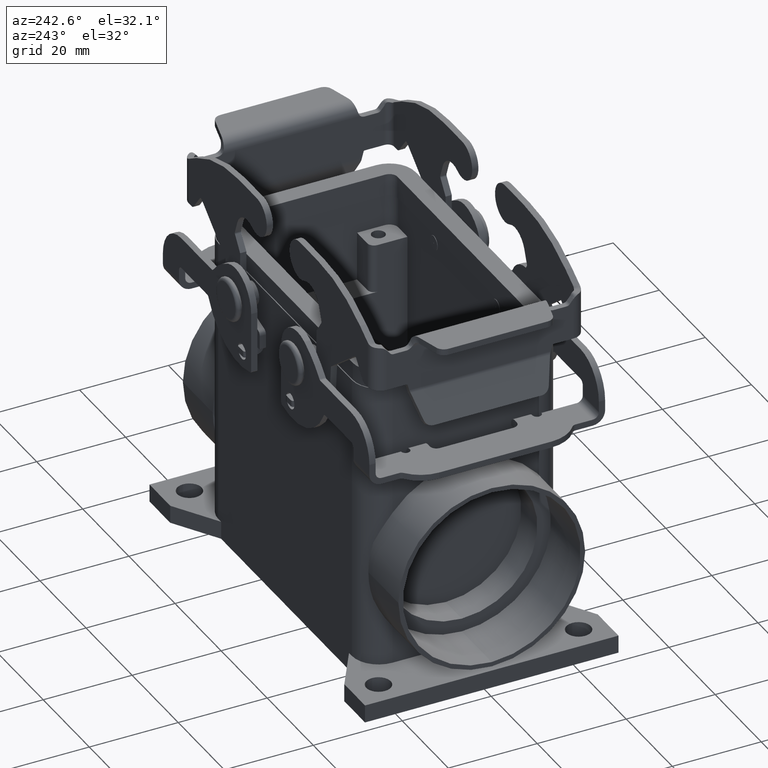
[diagram: clean part render]
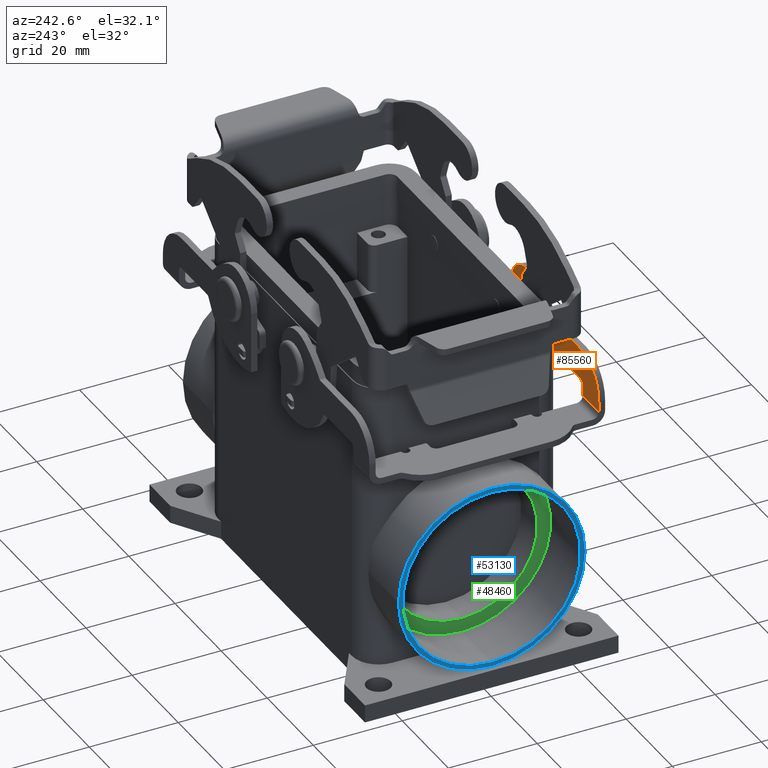
[diagram: same view with three faces highlighted in distinct colors, each labeled with its STEP entity id]
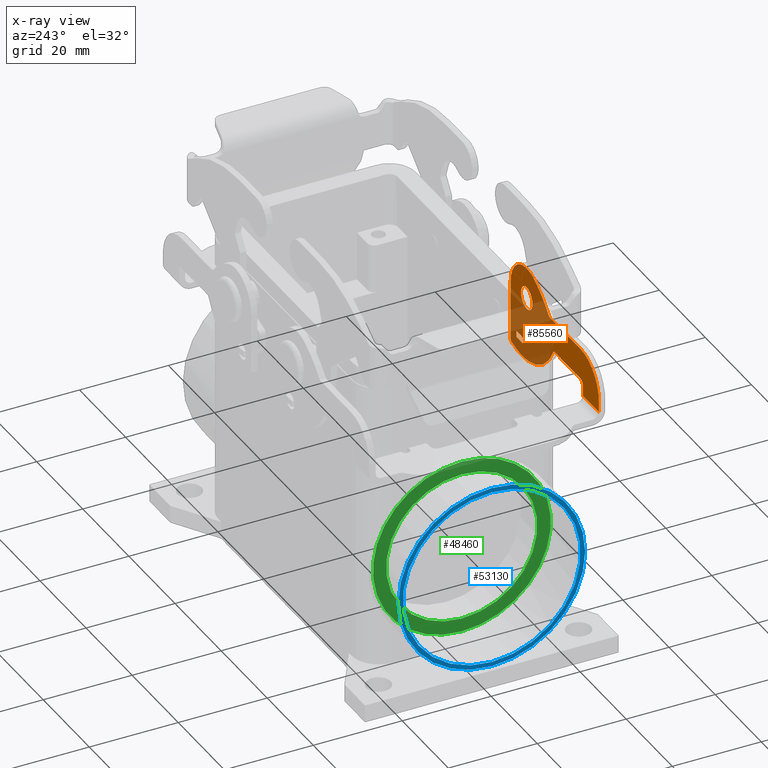
[diagram: x-ray of the same camera — body ghosted, the three highlighted faces saturated]
A machine part, auxiliary view with three faces highlighted in distinct colors.
The next image is the same camera in x-ray (body ghosted, the three faces saturated) — at least one of them is partly hidden behind the body in this view.
Their STEP definitions:

[orange] entity #85560 — the highlighted planar face has unit normal (0, 1, 0).
#2160=CARTESIAN_POINT('',(-36.6171406015383,-25.1,1.17841224990757));
#2170=VERTEX_POINT('',#2160);
#2330=CARTESIAN_POINT('',(-37.,-25.1,0.999999999999996));
#2340=VERTEX_POINT('',#2330);
#2370=CARTESIAN_POINT('',(-37.,-25.1,1.49999999999999));
#2380=DIRECTION('',(0.,-1.,0.));
#2390=DIRECTION('',(0.,0.,-1.));
#2400=AXIS2_PLACEMENT_3D('',#2370,#2380,#2390);
#2410=CIRCLE('',#2400,0.5);
#2420=EDGE_CURVE('',#2340,#2170,#2410,.T.);
#2650=CARTESIAN_POINT('',(-20.3429401994926,-25.1,-13.9746917094963));
#2660=VERTEX_POINT('',#2650);
#2820=CARTESIAN_POINT('',(-20.,-25.1,-13.5));
#2830=VERTEX_POINT('',#2820);
#2860=CARTESIAN_POINT('',(-20.5,-25.1,-13.5));
#2870=DIRECTION('',(0.,1.,0.));
#2880=DIRECTION('',(-0.314119601014884,0.,0.94938341899269));
#2890=AXIS2_PLACEMENT_3D('',#2860,#2870,#2880);
#2900=CIRCLE('',#2890,0.5);
#2910=EDGE_CURVE('',#2830,#2660,#2900,.T.);
#3610=CARTESIAN_POINT('',(-50.3,-25.1,-6.00000000000001));
#3620=VERTEX_POINT('',#3610);
#3770=CARTESIAN_POINT('',(-39.,-25.1,-6.00000000000001));
#3780=VERTEX_POINT('',#3770);
#3810=CARTESIAN_POINT('',(-39.,-25.1,-6.00000000000001));
#3820=DIRECTION('',(-1.,0.,0.));
#3830=VECTOR('',#3820,11.3);
#3840=LINE('',#3810,#3830);
#3850=EDGE_CURVE('',#3780,#3620,#3840,.T.);
#13520=CARTESIAN_POINT('',(-51.3,-25.1,-7.00000000000001));
#13530=VERTEX_POINT('',#13520);
#13640=CARTESIAN_POINT('',(-50.3,-25.1,-7.00000000000001));
#13650=DIRECTION('',(0.,-1.,0.));
#13660=DIRECTION('',(0.,0.,1.));
#13670=AXIS2_PLACEMENT_3D('',#13640,#13650,#13660);
#13680=CIRCLE('',#13670,1.);
#13690=EDGE_CURVE('',#3620,#13530,#13680,.T.);
#16350=CARTESIAN_POINT('',(-20.,-25.1,0.));
#16360=VERTEX_POINT('',#16350);
#16390=CARTESIAN_POINT('',(-20.,-25.1,0.));
#16400=DIRECTION('',(0.,0.,-1.));
#16410=VECTOR('',#16400,13.5);
#16420=LINE('',#16390,#16410);
#16430=EDGE_CURVE('',#16360,#2830,#16420,.T.);
#17550=CARTESIAN_POINT('',(-27.,-25.1,2.50000000000002));
#17560=VERTEX_POINT('',#17550);
#17720=CARTESIAN_POINT('',(-27.,-25.1,-2.49999999999998));
#17730=VERTEX_POINT('',#17720);
#17760=CARTESIAN_POINT('',(-27.,-25.1,0.));
#17770=DIRECTION('',(0.,1.,0.));
#17780=DIRECTION('',(-1.,0.,0.));
#17790=AXIS2_PLACEMENT_3D('',#17760,#17770,#17780);
#17800=CIRCLE('',#17790,2.5);
#17810=CARTESIAN_POINT('',(-24.5,-25.1,3.061516E-16));
#17820=VERTEX_POINT('',#17810);
#17830=EDGE_CURVE('',#17820,#17730,#17800,.T.);
#17850=EDGE_CURVE('',#17560,#17820,#17800,.T.);
#49150=CARTESIAN_POINT('',(-51.3,-25.1,-7.00000000000001));
#49160=DIRECTION('',(0.,0.,-1.));
#49170=VECTOR('',#49160,2.41663730259074);
#49180=LINE('',#49150,#49170);
#49190=CARTESIAN_POINT('',(-51.3,-25.1,-9.41663730259075));
#49200=VERTEX_POINT('',#49190);
#49210=EDGE_CURVE('',#13530,#49200,#49180,.T.);
#73560=CARTESIAN_POINT('',(-38.5501527166037,-25.1,-6.28174001369697));
#73570=VERTEX_POINT('',#73560);
#73600=CARTESIAN_POINT('',(-39.,-25.1,-6.5));
#73610=DIRECTION('',(0.,-1.,0.));
#73620=DIRECTION('',(0.899694566792531,0.,0.436519972606065));
#73630=AXIS2_PLACEMENT_3D('',#73600,#73610,#73620);
#73640=CIRCLE('',#73630,0.5);
#73650=EDGE_CURVE('',#73570,#3780,#73640,.T.);
#73850=CARTESIAN_POINT('',(-25.0547342147158,-25.1,0.266059575394024));
#73860=DIRECTION('',(0.,1.,0.));
#73870=DIRECTION('',(0.899694566792531,0.,0.436519972606066));
#73880=AXIS2_PLACEMENT_3D('',#73850,#73860,#73870);
#73890=CIRCLE('',#73880,15.);
#73900=EDGE_CURVE('',#2660,#73570,#73890,.T.);
#75760=CARTESIAN_POINT('',(-30.0677421045016,-25.1,6.291975713579));
#75770=VERTEX_POINT('',#75760);
#75820=CARTESIAN_POINT('',(-21.3027646630684,-25.1,-11.6850977537896));
#75830=DIRECTION('',(0.,1.,0.));
#75840=DIRECTION('',(0.438248872071659,0.,-0.898853673368429));
#75850=AXIS2_PLACEMENT_3D('',#75820,#75830,#75840);
#75860=CIRCLE('',#75850,20.);
#75870=EDGE_CURVE('',#2170,#75770,#75860,.T.);
#76310=CARTESIAN_POINT('',(-51.3,-25.1,-9.41663730259075));
#76320=DIRECTION('',(-1.,0.,0.));
#76330=VECTOR('',#76320,7.);
#76340=LINE('',#76310,#76330);
#76350=CARTESIAN_POINT('',(-58.3,-25.1,-9.41663730259075));
#76360=VERTEX_POINT('',#76350);
#76370=EDGE_CURVE('',#49200,#76360,#76340,.T.);
#79390=CARTESIAN_POINT('',(-50.3,-25.1,0.999999999999995));
#79400=VERTEX_POINT('',#79390);
#79480=CARTESIAN_POINT('',(-58.3,-25.1,-7.00000000000001));
#79490=VERTEX_POINT('',#79480);
#79520=CARTESIAN_POINT('',(-50.3,-25.1,-7.00000000000001));
#79530=DIRECTION('',(0.,1.,0.));
#79540=DIRECTION('',(0.,0.,-1.));
#79550=AXIS2_PLACEMENT_3D('',#79520,#79530,#79540);
#79560=CIRCLE('',#79550,8.);
#79570=EDGE_CURVE('',#79490,#79400,#79560,.T.);
#80300=CARTESIAN_POINT('',(-58.3,-25.1,-9.41663730259075));
#80310=DIRECTION('',(0.,0.,1.));
#80320=VECTOR('',#80310,2.41663730259074);
#80330=LINE('',#80300,#80320);
#80340=EDGE_CURVE('',#76360,#79490,#80330,.T.);
#82190=CARTESIAN_POINT('',(-50.3,-25.1,0.999999999999995));
#82200=DIRECTION('',(1.,0.,0.));
#82210=VECTOR('',#82200,13.3);
#82220=LINE('',#82190,#82210);
#82230=EDGE_CURVE('',#79400,#2340,#82220,.T.);
#84890=CARTESIAN_POINT('',(-39.15,-25.1,-3.86697021230299));
#84900=DIRECTION('',(0.,1.,0.));
#84910=DIRECTION('',(1.,-0.,0.));
#84920=AXIS2_PLACEMENT_3D('',#84890,#84900,#84910);
#84930=PLANE('',#84920);
#84940=ORIENTED_EDGE('',*,*,#17830,.F.);
#84950=EDGE_CURVE('',#17730,#17560,#17800,.T.);
#84960=ORIENTED_EDGE('',*,*,#84950,.F.);
#84970=ORIENTED_EDGE('',*,*,#17850,.F.);
#84980=EDGE_LOOP('',(#84970,#84960,#84940));
#84990=FACE_BOUND('',#84980,.T.);
#85000=ORIENTED_EDGE('',*,*,#49210,.T.);
#85010=ORIENTED_EDGE('',*,*,#13690,.T.);
#85020=ORIENTED_EDGE('',*,*,#3850,.T.);
#85030=ORIENTED_EDGE('',*,*,#73650,.T.);
#85040=ORIENTED_EDGE('',*,*,#73900,.T.);
#85050=ORIENTED_EDGE('',*,*,#2910,.T.);
#85060=ORIENTED_EDGE('',*,*,#16430,.T.);
#85070=CARTESIAN_POINT('',(-27.,-25.1,0.));
#85080=DIRECTION('',(0.,1.,0.));
#85090=DIRECTION('',(-1.,0.,0.));
#85100=AXIS2_PLACEMENT_3D('',#85070,#85080,#85090);
#85110=CIRCLE('',#85100,7.);
#85120=EDGE_CURVE('',#75770,#16360,#85110,.T.);
#85130=ORIENTED_EDGE('',*,*,#85120,.T.);
#85140=ORIENTED_EDGE('',*,*,#75870,.T.);
#85150=ORIENTED_EDGE('',*,*,#2420,.T.);
#85160=ORIENTED_EDGE('',*,*,#82230,.T.);
#85170=ORIENTED_EDGE('',*,*,#79570,.T.);
#85180=ORIENTED_EDGE('',*,*,#80340,.T.);
#85190=ORIENTED_EDGE('',*,*,#76370,.T.);
#85200=EDGE_LOOP('',(#85190,#85180,#85170,#85160,#85150,#85140,#85130,
#85060,#85050,#85040,#85030,#85020,#85010,#85000));
#85210=FACE_OUTER_BOUND('',#85200,.T.);
#85220=CARTESIAN_POINT('',(-22.5,-25.1,0.));
#85230=DIRECTION('',(8.88178419700125E-16,0.,-1.));
#85240=VECTOR('',#85230,1.);
#85250=LINE('',#85220,#85240);
#85260=CARTESIAN_POINT('',(-22.5,-25.1,-10.2376549150074));
#85270=VERTEX_POINT('',#85260);
#85280=CARTESIAN_POINT('',(-22.5,-25.1,-11.6376549150074));
#85290=VERTEX_POINT('',#85280);
#85300=EDGE_CURVE('',#85270,#85290,#85250,.T.);
#85310=ORIENTED_EDGE('',*,*,#85300,.F.);
#85320=CARTESIAN_POINT('',(0.,-25.1,-11.6376549150074));
#85330=DIRECTION('',(-1.,0.,4.44089209850063E-16));
#85340=VECTOR('',#85330,1.);
#85350=LINE('',#85320,#85340);
#85360=CARTESIAN_POINT('',(-25.4,-25.1,-11.6376549150074));
#85370=VERTEX_POINT('',#85360);
#85380=EDGE_CURVE('',#85290,#85370,#85350,.T.);
#85390=ORIENTED_EDGE('',*,*,#85380,.F.);
#85400=CARTESIAN_POINT('',(-25.4,-25.1,0.));
#85410=DIRECTION('',(8.88178419700124E-16,0.,1.));
#85420=VECTOR('',#85410,1.);
#85430=LINE('',#85400,#85420);
#85440=CARTESIAN_POINT('',(-25.4,-25.1,-10.2376549150074));
#85450=VERTEX_POINT('',#85440);
#85460=EDGE_CURVE('',#85370,#85450,#85430,.T.);
#85470=ORIENTED_EDGE('',*,*,#85460,.F.);
#85480=CARTESIAN_POINT('',(0.,-25.1,-10.2376549150074));
#85490=DIRECTION('',(-1.,0.,6.66133814775094E-16));
#85500=VECTOR('',#85490,1.);
#85510=LINE('',#85480,#85500);
#85520=EDGE_CURVE('',#85270,#85450,#85510,.T.);
#85530=ORIENTED_EDGE('',*,*,#85520,.T.);
#85540=EDGE_LOOP('',(#85530,#85470,#85390,#85310));
#85550=FACE_BOUND('',#85540,.T.);
#85560=ADVANCED_FACE('',(#84990,#85210,#85550),#84930,.T.);

[blue] entity #53130 — the highlighted planar face has unit normal (1, 0, -0).
#25870=CARTESIAN_POINT('',(-60.25,-21.,-40.));
#25880=VERTEX_POINT('',#25870);
#25910=CARTESIAN_POINT('',(-60.25,0.,-40.));
#25920=DIRECTION('',(-1.,0.,0.));
#25930=DIRECTION('',(0.,-1.,0.));
#25940=AXIS2_PLACEMENT_3D('',#25910,#25920,#25930);
#25950=CIRCLE('',#25940,21.);
#25960=CARTESIAN_POINT('',(-60.25,21.,-40.));
#25970=VERTEX_POINT('',#25960);
#25980=EDGE_CURVE('',#25880,#25970,#25950,.T.);
#27990=CARTESIAN_POINT('',(-60.25,0.,-20.));
#28000=VERTEX_POINT('',#27990);
#28360=CARTESIAN_POINT('',(-60.2499999999915,-2.44929359829471E-15,-60.)
);
#28370=VERTEX_POINT('',#28360);
#28400=CARTESIAN_POINT('',(-60.25,0.,-40.));
#28410=DIRECTION('',(1.,0.,4.247625E-13));
#28420=DIRECTION('',(-4.247625E-13,0.,1.));
#28430=AXIS2_PLACEMENT_3D('',#28400,#28410,#28420);
#28440=CIRCLE('',#28430,20.);
#28450=EDGE_CURVE('',#28370,#28000,#28440,.T.);
#52980=CARTESIAN_POINT('',(-60.25,0.,-40.));
#52990=DIRECTION('',(1.,0.,-0.));
#53000=DIRECTION('',(0.,-1.,0.));
#53010=AXIS2_PLACEMENT_3D('',#52980,#52990,#53000);
#53020=PLANE('',#53010);
#53030=ORIENTED_EDGE('',*,*,#25980,.T.);
#53040=EDGE_CURVE('',#25970,#25880,#25950,.T.);
#53050=ORIENTED_EDGE('',*,*,#53040,.T.);
#53060=EDGE_LOOP('',(#53050,#53030));
#53070=FACE_OUTER_BOUND('',#53060,.T.);
#53080=EDGE_CURVE('',#28000,#28370,#28440,.T.);
#53090=ORIENTED_EDGE('',*,*,#53080,.T.);
#53100=ORIENTED_EDGE('',*,*,#28450,.T.);
#53110=EDGE_LOOP('',(#53100,#53090));
#53120=FACE_BOUND('',#53110,.T.);
#53130=ADVANCED_FACE('',(#53070,#53120),#53020,.F.);

[green] entity #48460 — the highlighted planar face has unit normal (1, 0, 0).
#27500=CARTESIAN_POINT('',(-47.2500000000072,0.,-23.));
#27510=VERTEX_POINT('',#27500);
#27560=CARTESIAN_POINT('',(-47.25,0.,-40.));
#27570=DIRECTION('',(1.,0.,4.247625E-13));
#27580=DIRECTION('',(-4.247625E-13,0.,1.));
#27590=AXIS2_PLACEMENT_3D('',#27560,#27570,#27580);
#27600=CIRCLE('',#27590,17.);
#27610=CARTESIAN_POINT('',(-47.2499999999928,-2.0818995585505E-15,-57.))
;
#27620=VERTEX_POINT('',#27610);
#27630=EDGE_CURVE('',#27510,#27620,#27600,.T.);
#28010=CARTESIAN_POINT('',(-47.2500000000085,0.,-20.));
#28020=VERTEX_POINT('',#28010);
#28050=CARTESIAN_POINT('',(-47.25,0.,-40.));
#28060=DIRECTION('',(1.,0.,4.247625E-13));
#28070=DIRECTION('',(-4.247625E-13,0.,1.));
#28080=AXIS2_PLACEMENT_3D('',#28050,#28060,#28070);
#28090=CIRCLE('',#28080,20.);
#28100=CARTESIAN_POINT('',(-47.25,19.9157195746538,-38.1658479278553));
#28110=VERTEX_POINT('',#28100);
#28120=EDGE_CURVE('',#28110,#28020,#28090,.T.);
#28190=CARTESIAN_POINT('',(-47.25,19.9157195746538,-41.8341520721447));
#28200=VERTEX_POINT('',#28190);
#28230=CARTESIAN_POINT('',(-47.25,0.,-40.));
#28240=DIRECTION('',(1.,0.,4.247625E-13));
#28250=DIRECTION('',(-4.247625E-13,0.,1.));
#28260=AXIS2_PLACEMENT_3D('',#28230,#28240,#28250);
#28270=CIRCLE('',#28260,20.);
#28280=CARTESIAN_POINT('',(-47.2499999999915,-2.44929359829471E-15,-60.)
);
#28290=VERTEX_POINT('',#28280);
#28300=EDGE_CURVE('',#28290,#28200,#28270,.T.);
#48120=CARTESIAN_POINT('',(-47.25,0.,-21.5));
#48130=DIRECTION('',(1.,0.,0.));
#48140=DIRECTION('',(0.,0.,-1.));
#48150=AXIS2_PLACEMENT_3D('',#48120,#48130,#48140);
#48160=PLANE('',#48150);
#48170=ORIENTED_EDGE('',*,*,#28120,.F.);
#48180=CARTESIAN_POINT('',(-47.25,-19.9157195746538,-38.1658479278553));
#48190=VERTEX_POINT('',#48180);
#48200=EDGE_CURVE('',#28020,#48190,#28090,.T.);
#48210=ORIENTED_EDGE('',*,*,#48200,.F.);
#48220=CARTESIAN_POINT('',(-47.25,-19.9157195746538,-38.1658479278553));
#48230=DIRECTION('',(0.,0.,-1.));
#48240=VECTOR('',#48230,3.66830414428944);
#48250=LINE('',#48220,#48240);
#48260=CARTESIAN_POINT('',(-47.25,-19.9157195746538,-41.8341520721447));
#48270=VERTEX_POINT('',#48260);
#48280=EDGE_CURVE('',#48190,#48270,#48250,.T.);
#48290=ORIENTED_EDGE('',*,*,#48280,.F.);
#48300=EDGE_CURVE('',#48270,#28290,#28270,.T.);
#48310=ORIENTED_EDGE('',*,*,#48300,.F.);
#48320=ORIENTED_EDGE('',*,*,#28300,.F.);
#48330=CARTESIAN_POINT('',(-47.25,19.9157195746538,-41.8341520721447));
#48340=DIRECTION('',(0.,0.,1.));
#48350=VECTOR('',#48340,3.66830414428934);
#48360=LINE('',#48330,#48350);
#48370=EDGE_CURVE('',#28200,#28110,#48360,.T.);
#48380=ORIENTED_EDGE('',*,*,#48370,.F.);
#48390=EDGE_LOOP('',(#48380,#48320,#48310,#48290,#48210,#48170));
#48400=FACE_OUTER_BOUND('',#48390,.T.);
#48410=ORIENTED_EDGE('',*,*,#27630,.T.);
#48420=EDGE_CURVE('',#27620,#27510,#27600,.T.);
#48430=ORIENTED_EDGE('',*,*,#48420,.T.);
#48440=EDGE_LOOP('',(#48430,#48410));
#48450=FACE_BOUND('',#48440,.T.);
#48460=ADVANCED_FACE('',(#48400,#48450),#48160,.F.);